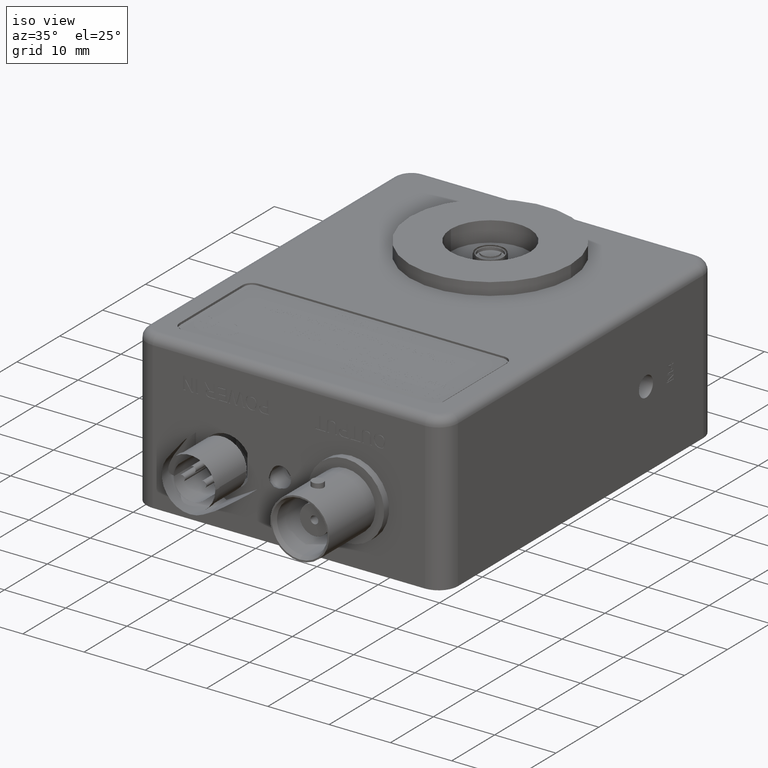
[diagram: clean part render]
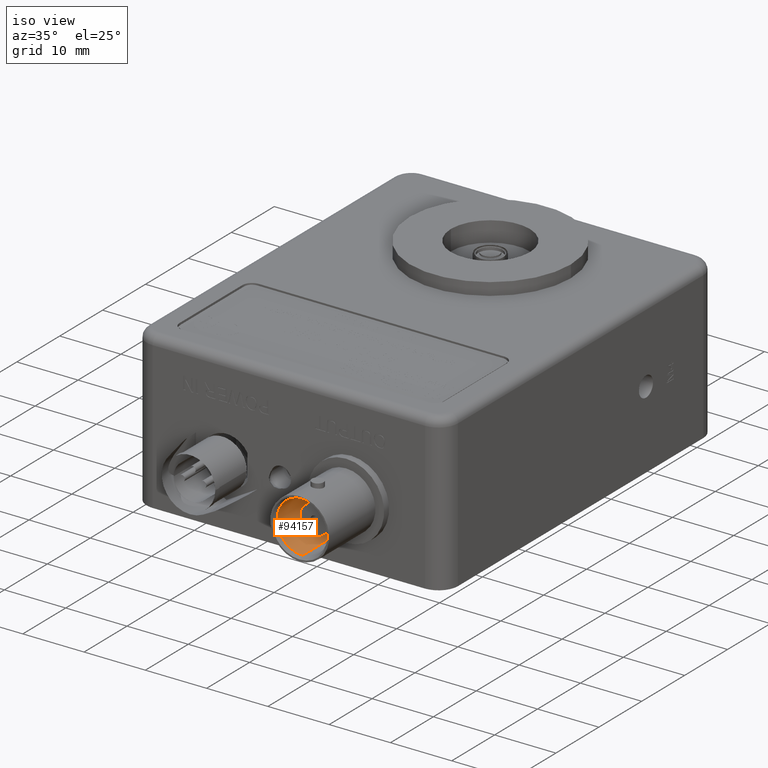
[diagram: same view with one face highlighted and labeled with its STEP entity id]
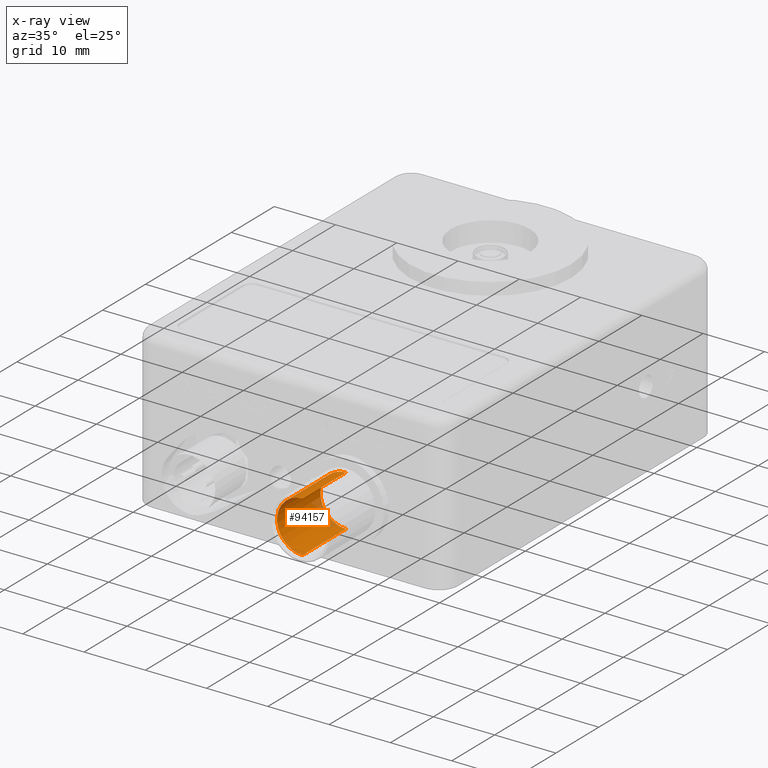
[diagram: x-ray of the same camera — body ghosted, the highlighted face saturated]
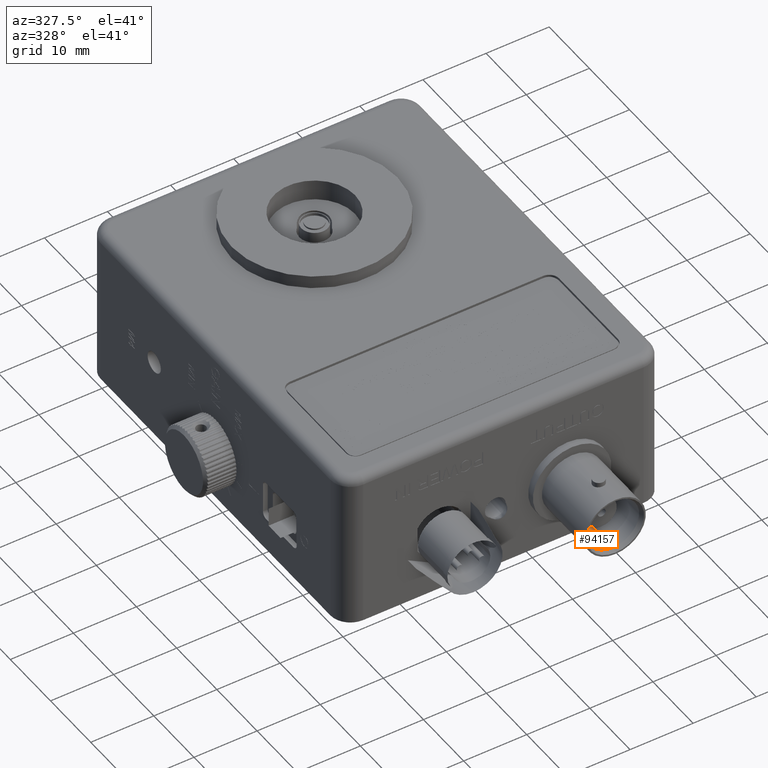
[diagram: same view with one face highlighted and labeled with its STEP entity id]
A machine part, iso view. The second image highlights one B-rep face of the part: STEP entity #94157.
The next image is the same camera in x-ray: the body ghosted, the highlighted face saturated — about 9% of this face is hidden behind the body in this view.
A second angle (auxiliary view) of the same face is appended — the face is thin or edge-on in the first view.
In plain terms, the highlighted cylindrical surface (edge-blend (fillet) strip) has radius 4.1656 mm, axis along (0, 1, 0).
Its self-contained STEP definition (entity closure, byte-faithful):
#8987 = CARTESIAN_POINT ( 'NONE',  ( 0.0000000000000000000, 0.0000000000000000000, 1.168400000000000100 ) ) ;
#14062 = CARTESIAN_POINT ( 'NONE',  ( -4.165599999999999500, 0.0000000000000000000, 11.96339999999999800 ) ) ;
#19116 = EDGE_CURVE ( 'NONE', #106576, #40135, #52660, .T. ) ;
#19206 = DIRECTION ( 'NONE',  ( -1.000000000000000000, 0.0000000000000000000, 0.0000000000000000000 ) ) ;
#19923 = DIRECTION ( 'NONE',  ( -1.000000000000000000, 0.0000000000000000000, 0.0000000000000000000 ) ) ;
#20853 = EDGE_CURVE ( 'NONE', #77323, #86759, #99463, .T. ) ;
#24327 = ORIENTED_EDGE ( 'NONE', *, *, #42416, .F. ) ;
#25049 = AXIS2_PLACEMENT_3D ( 'NONE', #115820, #55780, #125942 ) ;
#29611 = CARTESIAN_POINT ( 'NONE',  ( 0.0000000000000000000, 0.0000000000000000000, 11.96339999999999800 ) ) ;
#38730 = EDGE_LOOP ( 'NONE', ( #24327, #65840, #63401, #104557 ) ) ;
#40135 = VERTEX_POINT ( 'NONE', #91589 ) ;
#42416 = EDGE_CURVE ( 'NONE', #106576, #77323, #102724, .T. ) ;
#46159 = VECTOR ( 'NONE', #59681, 1000.000000000000000 ) ;
#49596 = CARTESIAN_POINT ( 'NONE',  ( 4.165599999999999500, 5.101388706528213000E-016, 11.96339999999999800 ) ) ;
#52660 = CIRCLE ( 'NONE', #25049, 4.165600000021640900 ) ;
#55780 = DIRECTION ( 'NONE',  ( 0.0000000000000000000, 0.0000000000000000000, 1.000000000000000000 ) ) ;
#59681 = DIRECTION ( 'NONE',  ( -0.0000000000000000000, -0.0000000000000000000, -1.000000000000000000 ) ) ;
#63401 = ORIENTED_EDGE ( 'NONE', *, *, #105511, .T. ) ;
#64578 = DIRECTION ( 'NONE',  ( -0.0000000000000000000, -0.0000000000000000000, -1.000000000000000000 ) ) ;
#65840 = ORIENTED_EDGE ( 'NONE', *, *, #19116, .T. ) ;
#69568 = DIRECTION ( 'NONE',  ( -0.0000000000000000000, -0.0000000000000000000, -1.000000000000000000 ) ) ;
#75040 = AXIS2_PLACEMENT_3D ( 'NONE', #29611, #69568, #19923 ) ;
#77323 = VERTEX_POINT ( 'NONE', #93860 ) ;
#79143 = AXIS2_PLACEMENT_3D ( 'NONE', #8987, #79394, #19206 ) ;
#79394 = DIRECTION ( 'NONE',  ( 0.0000000000000000000, 0.0000000000000000000, 1.000000000000000000 ) ) ;
#83367 = LINE ( 'NONE', #14062, #130470 ) ;
#86759 = VERTEX_POINT ( 'NONE', #130023 ) ;
#91589 = CARTESIAN_POINT ( 'NONE',  ( -4.165600000021640900, 0.0000000000000000000, 11.30348864228381000 ) ) ;
#93860 = CARTESIAN_POINT ( 'NONE',  ( 4.165599999999999500, 5.101388706528213000E-016, 1.168400000000000100 ) ) ;
#94157 = ADVANCED_FACE ( 'NONE', ( #118982 ), #129935, .F. ) ;
#99463 = CIRCLE ( 'NONE', #79143, 4.165599999999999500 ) ;
#102724 = LINE ( 'NONE', #49596, #46159 ) ;
#104557 = ORIENTED_EDGE ( 'NONE', *, *, #20853, .F. ) ;
#105511 = EDGE_CURVE ( 'NONE', #40135, #86759, #83367, .T. ) ;
#106557 = CARTESIAN_POINT ( 'NONE',  ( 4.165600000021640900, 5.101388706554716700E-016, 11.30348864228381000 ) ) ;
#106576 = VERTEX_POINT ( 'NONE', #106557 ) ;
#115820 = CARTESIAN_POINT ( 'NONE',  ( 0.0000000000000000000, 0.0000000000000000000, 11.30348864228381000 ) ) ;
#118982 = FACE_OUTER_BOUND ( 'NONE', #38730, .T. ) ;
#125942 = DIRECTION ( 'NONE',  ( 1.000000000000000000, 0.0000000000000000000, 0.0000000000000000000 ) ) ;
#129935 = CYLINDRICAL_SURFACE ( 'NONE', #75040, 4.165599999999999500 ) ;
#130023 = CARTESIAN_POINT ( 'NONE',  ( -4.165599999999999500, 0.0000000000000000000, 1.168400000000000100 ) ) ;
#130470 = VECTOR ( 'NONE', #64578, 1000.000000000000000 ) ;